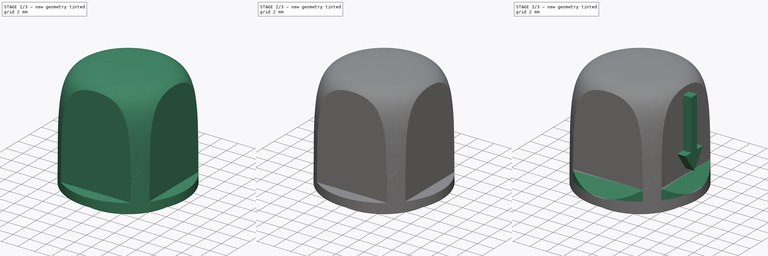
[diagram: build sequence overview — one tinted view per stage of 3, left to right]
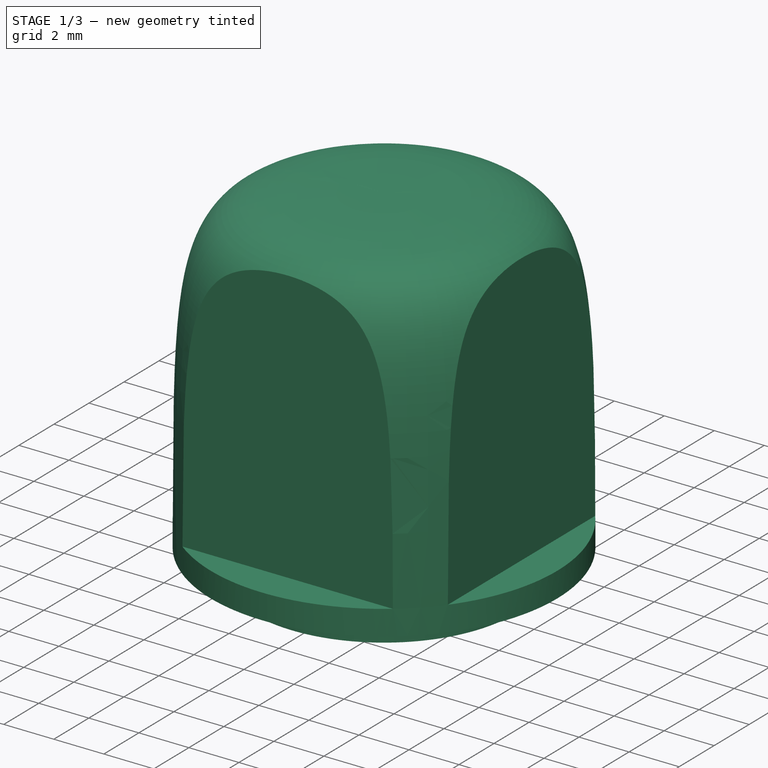
[diagram: stage 1 of 3 — iso view after this stage's code; geometry added in this stage tinted green]
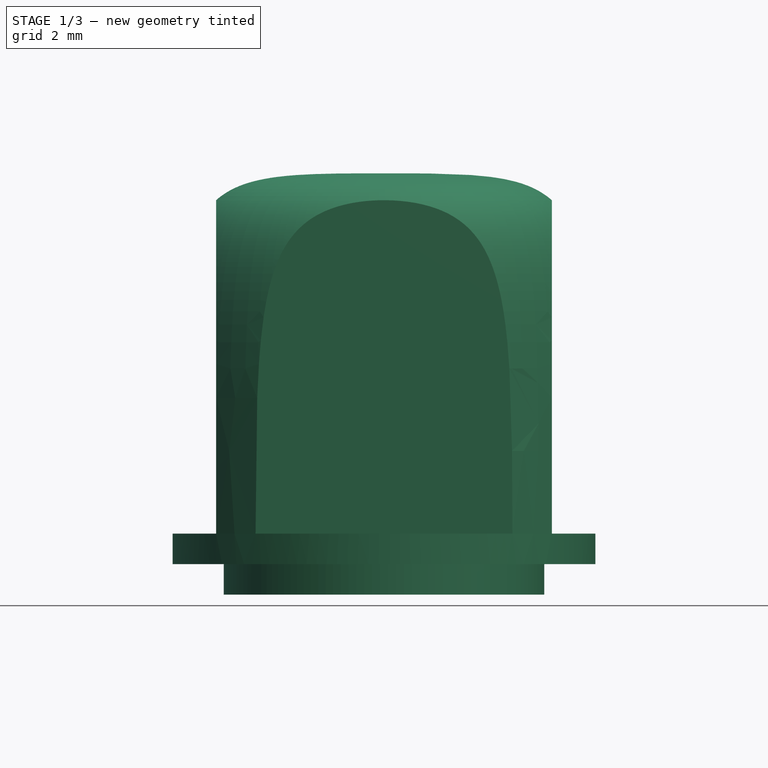
[diagram: stage 1 of 3 — front view after this stage's code; geometry added in this stage tinted green]
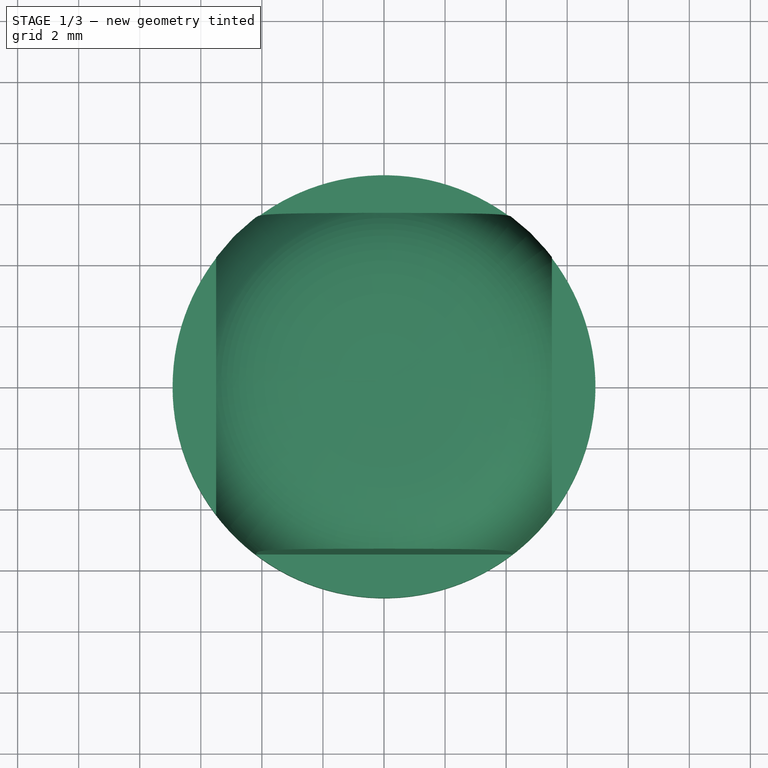
[diagram: stage 1 of 3 — top view after this stage's code; geometry added in this stage tinted green]
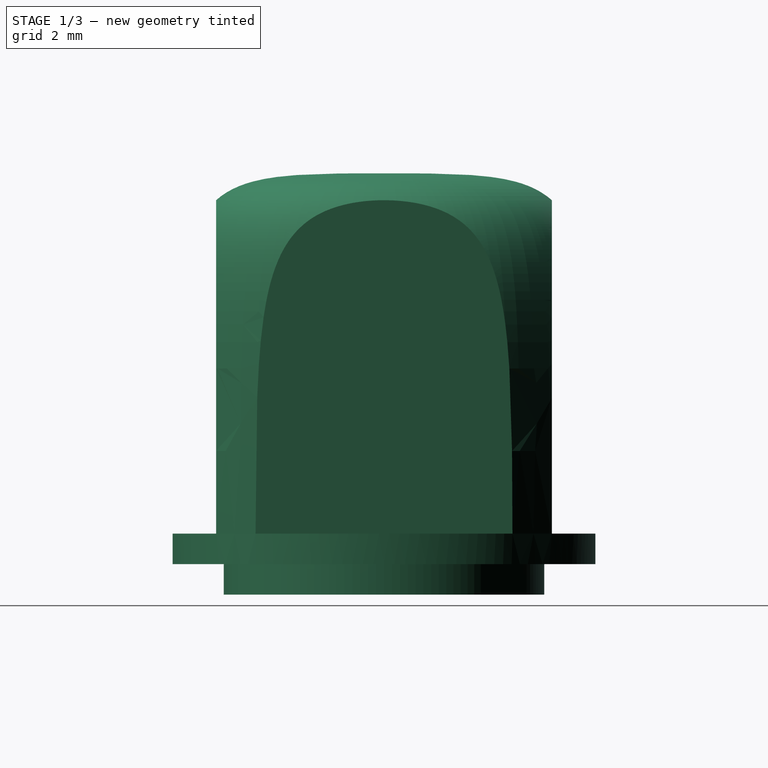
[diagram: stage 1 of 3 — right view after this stage's code; geometry added in this stage tinted green]
FCSTD DOCUMENT  (FreeCAD 0.21R33771 (Git))
Label: Крышка под рацию
License: All rights reserved
LicenseURL: https://en.wikipedia.org/wiki/All_rights_reserved
objects: Sketcher::SketchObject×6, PartDesign::Pocket×3, PartDesign::Pad×2, PartDesign::Chamfer×2, PartDesign::Revolution×1, PartDesign::Body×1
note: 23 computed .brp shape members not serialized (recipe doc carries the construction recipe); baked Part::Feature solids carry a one-line shape summary decoded from their .brp

FEATURE [Sketcher::SketchObject] Sketch
  FullyConstrained = true
  MapMode = 5
  Placement = pos=(0,0,0) rot=(1,0,0;1.5708rad)
  Support = -> [XZ_Plane]
  sketch-geometry (13):
    g0: LineSegment StartX=0 StartY=0 StartZ=0 EndX=-6.925 EndY=0 EndZ=0
    g1: LineSegment StartX=-6.925 StartY=0 StartZ=0 EndX=-6.925 EndY=6.4 EndZ=0
    g2: LineSegment StartX=-6.925 StartY=6.4 StartZ=0 EndX=-6.925 EndY=12.8 EndZ=0
    g3: LineSegment StartX=-6.925 StartY=12.8 StartZ=0 EndX=0 EndY=12.8 EndZ=0
    g4: Circle CenterX=-6.925 CenterY=0 CenterZ=0 NormalX=0 NormalY=0 NormalZ=1 AngleXU=0 Radius=1
    g5: Circle CenterX=-6.925 CenterY=12.8 CenterZ=0 NormalX=0 NormalY=0 NormalZ=1 AngleXU=0 Radius=1
    g6: Circle CenterX=-6.925 CenterY=12.8 CenterZ=0 NormalX=0 NormalY=0 NormalZ=1 AngleXU=0 Radius=1
    g7: BSplineCurve PolesCount=4 KnotsCount=2 Degree=3 IsPeriodic=0
    g8: GeomPoint X=-6.925 Y=0 Z=0
    g9: GeomPoint X=0 Y=12.8 Z=0
    g10: Circle CenterX=0 CenterY=12.8 CenterZ=0 NormalX=0 NormalY=0 NormalZ=1 AngleXU=0 Radius=1
    g11: LineSegment StartX=-6.925 StartY=0 StartZ=0 EndX=0 EndY=0 EndZ=0
    g12: LineSegment StartX=0 StartY=0 StartZ=0 EndX=0 EndY=12.8 EndZ=0
  constraints (30):
    c: Coincident(g-1,g0)
    c: PointOnObject(g0,g-1)
    c: Coincident(g0,g1)
    c: Vertical(g1)
    c: Vertical(g2)
    c: Coincident(g2,g3)
    c: Horizontal(g3)
    c: Equal(g2,g1)
    c: PointOnObject(g3,g-2)
    c: Weight(g4) = 1
    c: Coincident(g7,g0)
    c: Equal(g4,g5)
    c: Equal(g4,g6)
    c: Coincident(g7,g3)
    c: InternalAlignment(g4,g7)
    c: InternalAlignment(g5,g7)
    c: InternalAlignment(g6,g7)
    c: InternalAlignment(g8,g7)
    c: InternalAlignment(g9,g7)
    c: Coincident(g1,g2)
    c: Coincident(g5,g2)
    c: InternalAlignment(g10,g7)
    c: Equal(g10,g4)
    c: Coincident(g6,g2)
    c: Coincident(g11,g7)
    c: Coincident(g11,g0)
    c: Coincident(g11,g12)
    c: Coincident(g12,g7)
    c: DistanceY(g7,g2) = 12.8  'L1'
    c: DistanceX(g11,g11) = 6.925
FEATURE [PartDesign::Revolution] Revolution
  Angle = 360
  Axis = (0,2e-16,1)
  Base = (0,0,0)
  Placement = pos=(0,0,0) rot=(1,0,0;1.5708rad)
  Profile = -> Sketch
  ReferenceAxis = -> Sketch [V_Axis]
FEATURE [Sketcher::SketchObject] Sketch001
  AttachmentOffset = pos=(0,0,12.8) rot=(0,0,1;0rad)
  ExternalGeometry = -> [Revolution]
  FullyConstrained = true
  MapMode = 5
  Placement = pos=(0,0,12.8) rot=(0,0,1;0rad)
  Support = -> [XY_Plane]
  expr: .AttachmentOffset.Base.z = Sketch.Constraints.L1
  sketch-geometry (8):
    g0: ArcOfCircle CenterX=0 CenterY=0 CenterZ=0 NormalX=0 NormalY=0 NormalZ=1 AngleXU=0 Radius=6.925 StartAngle=5.63012 EndAngle=6.93625
    g1: ArcOfCircle CenterX=0 CenterY=0 CenterZ=0 NormalX=0 NormalY=0 NormalZ=1 AngleXU=0 Radius=6.925 StartAngle=0.917729 EndAngle=2.22386
    g2: ArcOfCircle CenterX=0 CenterY=0 CenterZ=0 NormalX=0 NormalY=0 NormalZ=1 AngleXU=0 Radius=6.925 StartAngle=2.48853 EndAngle=3.79466
    g3: ArcOfCircle CenterX=0 CenterY=0 CenterZ=0 NormalX=0 NormalY=0 NormalZ=1 AngleXU=0 Radius=6.925 StartAngle=4.05932 EndAngle=5.36546
    g4: LineSegment StartX=-4.20781 StartY=5.5 StartZ=0 EndX=4.20781 EndY=5.5 EndZ=0
    g5: LineSegment StartX=5.5 StartY=4.20781 StartZ=0 EndX=5.5 EndY=-4.20781 EndZ=0
    g6: LineSegment StartX=4.20781 StartY=-5.5 StartZ=0 EndX=-4.20781 EndY=-5.5 EndZ=0
    g7: LineSegment StartX=-5.5 StartY=-4.20781 StartZ=0 EndX=-5.5 EndY=4.20781 EndZ=0
  constraints (24):
    c: Coincident(g0,g-3)
    c: PointOnObject(g0,g-3)
    c: Coincident(g1,g0)
    c: PointOnObject(g1,g-3)
    c: Coincident(g2,g0)
    c: PointOnObject(g2,g-3)
    c: Coincident(g3,g0)
    c: PointOnObject(g3,g-3)
    c: Coincident(g4,g1)
    c: Coincident(g4,g1)
    c: Coincident(g5,g0)
    c: Coincident(g5,g0)
    c: Coincident(g6,g3)
    c: Coincident(g6,g3)
    c: Coincident(g7,g2)
    c: Coincident(g7,g2)
    c: Horizontal(g4)
    c: Horizontal(g6)
    c: Vertical(g7)
    c: Vertical(g5)
    c: Equal(g4,g7)
    c: Equal(g7,g6)
    c: Equal(g6,g5)
    c: DistanceX(g2,g0) = 11
FEATURE [PartDesign::Pocket] Pocket
  BaseFeature = -> Revolution
  Direction = (0,0,-1)
  Length = 11.8
  Length2 = 5
  Offset = 0.1
  Placement = pos=(0,0,0) rot=(1,0,0;1.5708rad)
  Profile = -> Sketch001
  ReferenceAxis = -> Sketch001 [N_Axis]
  Type = 0
FEATURE [Sketcher::SketchObject] Sketch002
  FullyConstrained = true
  MapMode = 5
  Support = -> [XY_Plane]
  sketch-geometry (4):
    g0: Circle CenterX=0 CenterY=0 CenterZ=0 NormalX=0 NormalY=0 NormalZ=1 AngleXU=0 Radius=5.25
    g1: Circle CenterX=0 CenterY=0 CenterZ=0 NormalX=0 NormalY=0 NormalZ=1 AngleXU=0 Radius=4.25
    g2: GeomPoint X=4.25 Y=0 Z=0
    g3: GeomPoint X=5.25 Y=0 Z=0
  constraints (8):
    c: Coincident(g0,g-1)
    c: Coincident(g1,g0)
    c: PointOnObject(g2,g1)
    c: PointOnObject(g3,g0)
    c: PointOnObject(g2,g-1)
    c: PointOnObject(g3,g-1)
    c: DistanceX(g0,g3) = 5.25
    c: DistanceX(g2,g3) = 1
FEATURE [PartDesign::Pad] Pad
  BaseFeature = -> Pocket
  Direction = (0,0,1)
  Length = 1
  Length2 = 10
  Placement = pos=(0,0,0) rot=(1,0,0;1.5708rad)
  Profile = -> Sketch002
  ReferenceAxis = -> Sketch002 [N_Axis]
  Reversed = true
  Type = 0
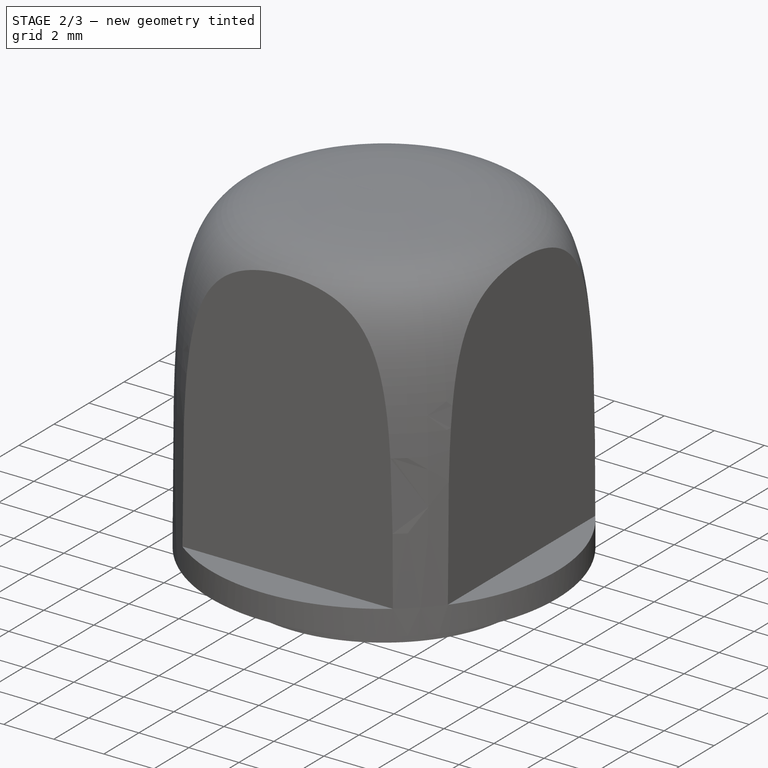
[diagram: stage 2 of 3 — iso view after this stage's code; geometry added in this stage tinted green]
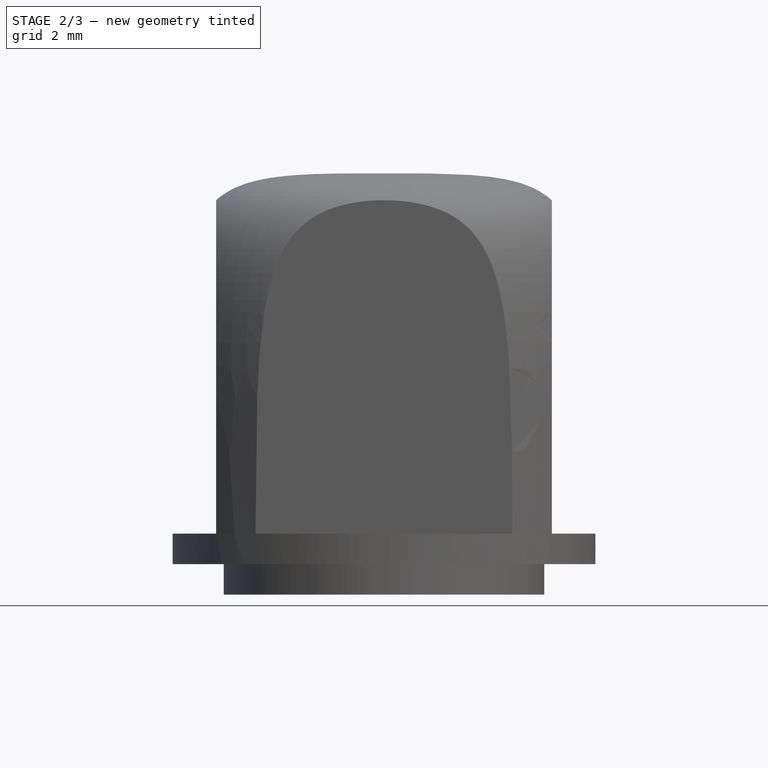
[diagram: stage 2 of 3 — front view after this stage's code; geometry added in this stage tinted green]
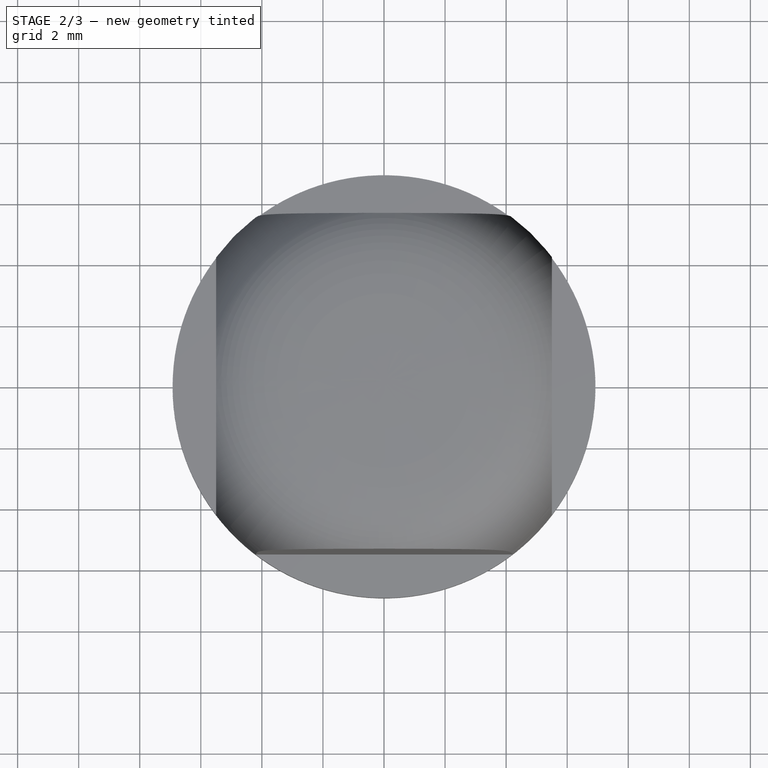
[diagram: stage 2 of 3 — top view after this stage's code; geometry added in this stage tinted green]
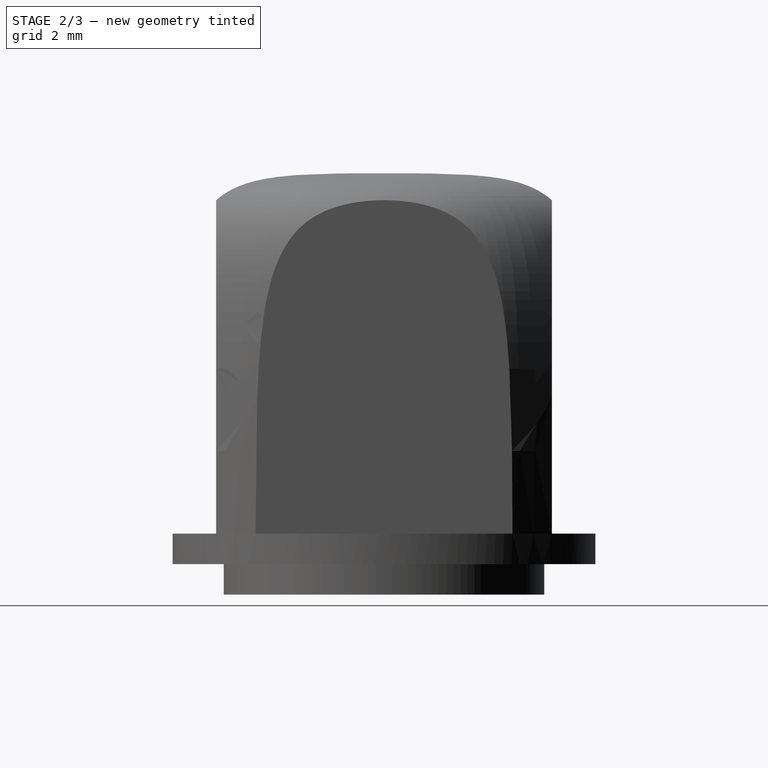
[diagram: stage 2 of 3 — right view after this stage's code; geometry added in this stage tinted green]
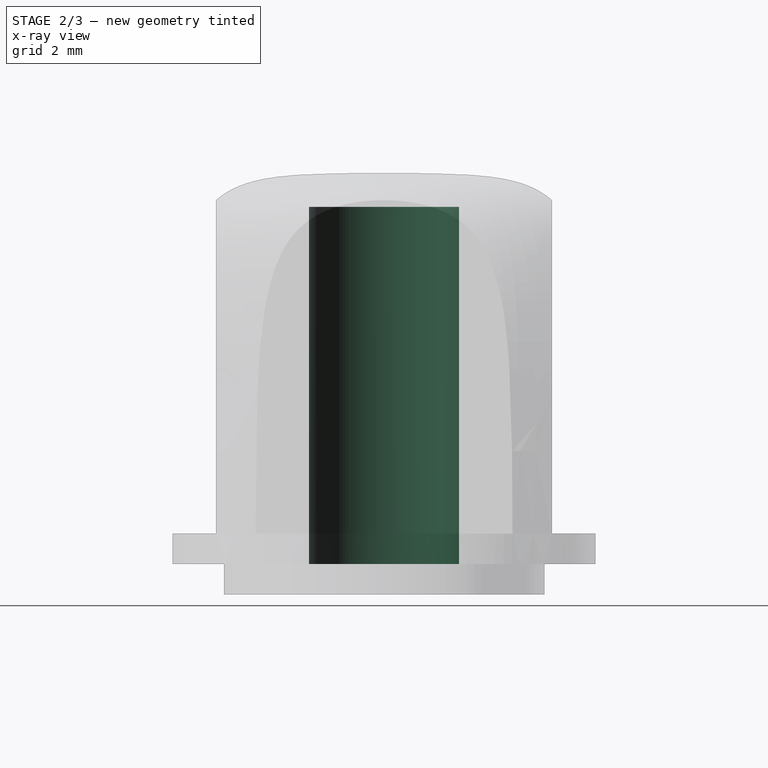
[diagram: stage 2 of 3 — x-ray composite at the right view; earlier geometry ghosted, this stage's added geometry solid]
FEATURE [Sketcher::SketchObject] Sketch003
  ExternalGeometry = -> [Pad]
  FullyConstrained = true
  MapMode = 5
  Placement = pos=(0,0,0) rot=(1,0,0;3.14159rad)
  Support = -> [Pad]
  sketch-geometry (2):
    g0: ArcOfCircle CenterX=0 CenterY=-2e-16 CenterZ=0 NormalX=0 NormalY=0 NormalZ=1 AngleXU=0 Radius=2.46 StartAngle=0.915197 EndAngle=5.36799
    g1: LineSegment StartX=1.4997 StartY=1.95 StartZ=0 EndX=1.4997 EndY=-1.95 EndZ=0
  constraints (6):
    c: Coincident(g0,g-3)
    c: Vertical(g1)
    c: Coincident(g0,g1)
    c: Coincident(g0,g1)
    c: Diameter(g0) = 4.92
    c: DistanceY(g1,g1) = 3.9
FEATURE [PartDesign::Pocket] Pocket001
  BaseFeature = -> Pad
  Direction = (0,2e-16,1)
  Length = 11.7
  Length2 = 5
  Placement = pos=(0,0,0) rot=(1,0,0;1.5708rad)
  Profile = -> Sketch003
  ReferenceAxis = -> Sketch003 [N_Axis]
  Type = 0
FEATURE [Sketcher::SketchObject] Sketch004
  ExternalGeometry = -> [Pocket001]
  FullyConstrained = true
  MapMode = 5
  Placement = pos=(0,0,0) rot=(1,0,0;3.14159rad)
  Support = -> [Pocket001]
  sketch-geometry (1):
    g0: Circle CenterX=0 CenterY=0 CenterZ=0 NormalX=0 NormalY=0 NormalZ=1 AngleXU=0 Radius=2.46
  constraints (2):
    c: Coincident(g0,g-3)
    c: Equal(g0,g-3)
FEATURE [PartDesign::Pocket] Pocket002
  BaseFeature = -> Pocket001
  Direction = (0,2e-16,1)
  Length = 4
  Length2 = 5
  Placement = pos=(0,0,0) rot=(1,0,0;1.5708rad)
  Profile = -> Sketch004
  ReferenceAxis = -> Sketch004 [N_Axis]
  Type = 0
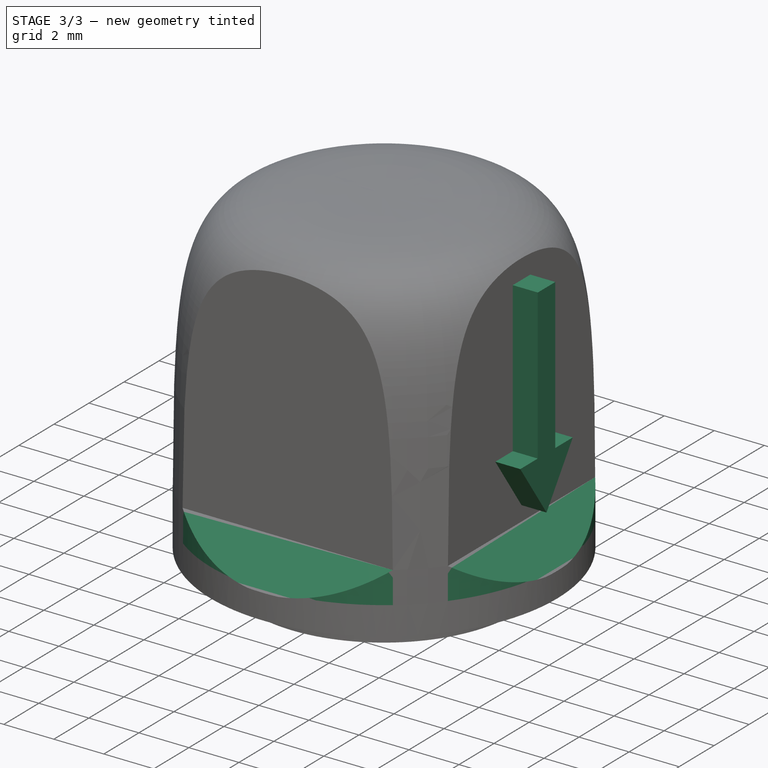
[diagram: stage 3 of 3 — iso view after this stage's code; geometry added in this stage tinted green]
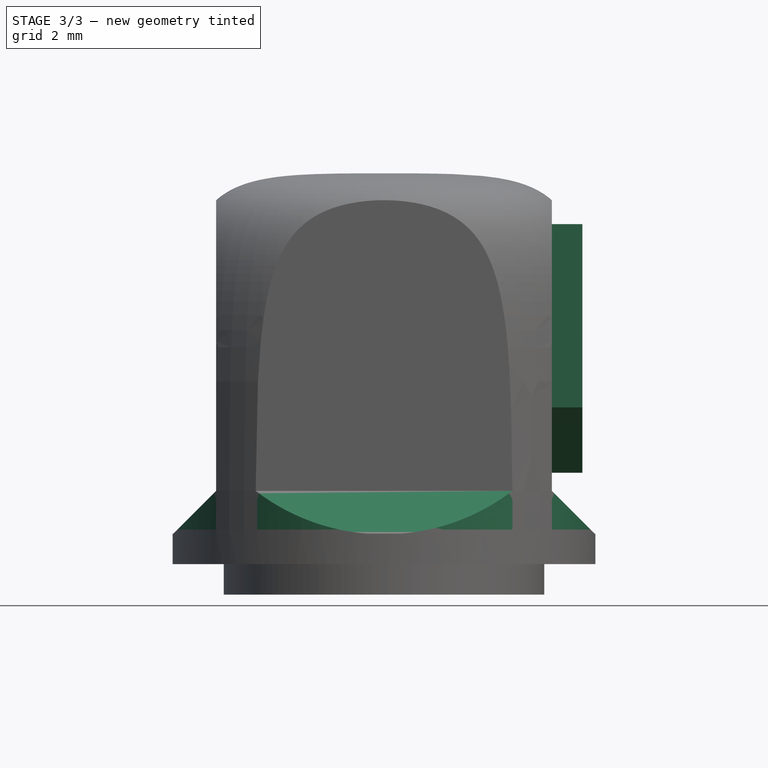
[diagram: stage 3 of 3 — front view after this stage's code; geometry added in this stage tinted green]
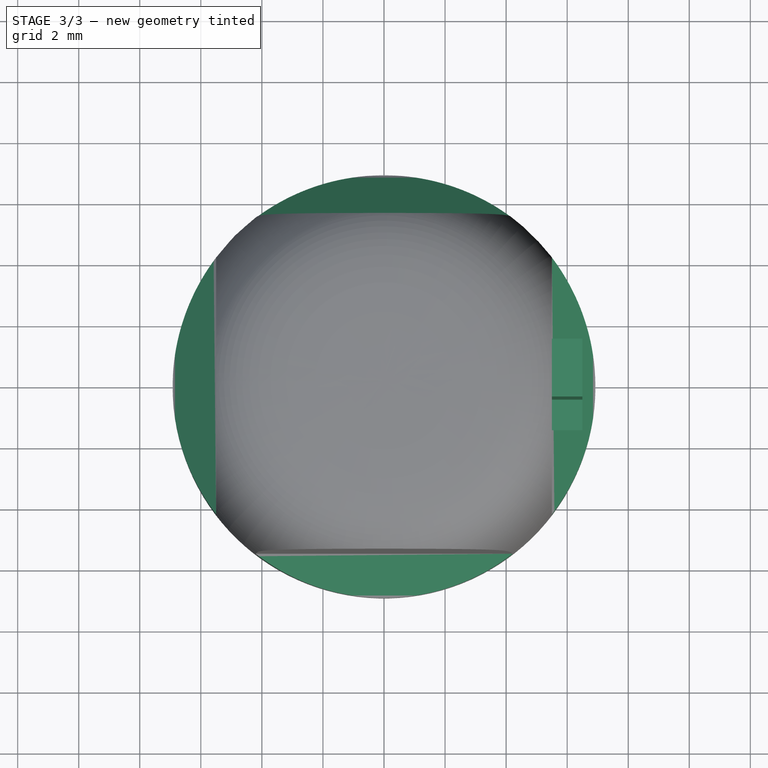
[diagram: stage 3 of 3 — top view after this stage's code; geometry added in this stage tinted green]
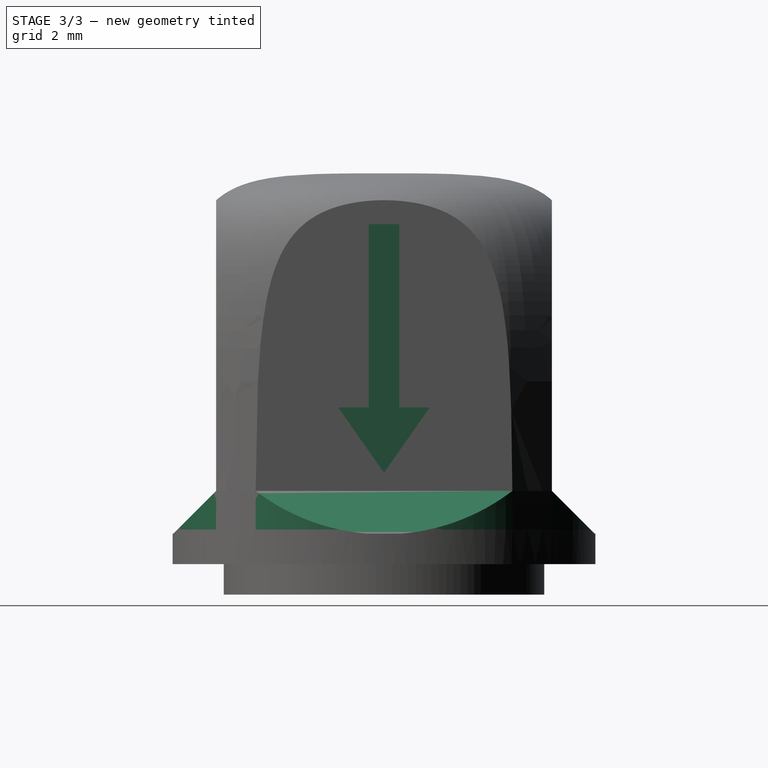
[diagram: stage 3 of 3 — right view after this stage's code; geometry added in this stage tinted green]
FEATURE [PartDesign::Chamfer] Chamfer
  Angle = 45
  Base = -> Pocket002 [Edge18,Edge17,Edge15,Edge19]
  BaseFeature = -> Pocket002
  ChamferType = 0
  FlipDirection = false
  Placement = pos=(0,0,0) rot=(1,0,0;1.5708rad)
  Size = 1.4
  Size2 = 1
  SupportTransform = false
  UseAllEdges = false
FEATURE [Sketcher::SketchObject] Sketch005
  FullyConstrained = false
  MapMode = 5
  Placement = pos=(5.5,0,0) rot=(0.707107,0,0.707107;3.14159rad)
  Support = -> [Chamfer]
  sketch-geometry (7):
    g0: LineSegment StartX=2.99282 StartY=0 StartZ=0 EndX=5.13504 EndY=-1.5 EndZ=0
    g1: LineSegment StartX=5.13504 StartY=-1.5 StartZ=0 EndX=5.13504 EndY=-0.5 EndZ=0
    g2: LineSegment StartX=5.13504 StartY=-0.5 StartZ=0 EndX=11.135 EndY=-0.5 EndZ=0
    g3: LineSegment StartX=11.135 StartY=-0.5 StartZ=0 EndX=11.135 EndY=0.5 EndZ=0
    g4: LineSegment StartX=11.135 StartY=0.5 StartZ=0 EndX=5.13504 EndY=0.5 EndZ=0
    g5: LineSegment StartX=5.13504 StartY=0.5 StartZ=0 EndX=5.13504 EndY=1.5 EndZ=0
    g6: LineSegment StartX=5.13504 StartY=1.5 StartZ=0 EndX=2.99282 EndY=0 EndZ=0
  constraints (20):
    c: PointOnObject(g0,g-1)
    c: Coincident(g0,g1)
    c: Vertical(g1)
    c: Coincident(g1,g2)
    c: Horizontal(g2)
    c: Coincident(g2,g3)
    c: Coincident(g3,g4)
    c: Horizontal(g4)
    c: Coincident(g4,g5)
    c: Coincident(g5,g6)
    c: Coincident(g6,g0)
    c: Equal(g0,g6)
    c: Equal(g5,g1)
    c: Vertical(g1,g4)
    c: Vertical(g3)
    c: Vertical(g5)
    c: Angle(g-1,g0) = 2.53073
    c: DistanceY(g5,g5) = 1
    c: DistanceY(g1,g4) = 1
    c: DistanceX(g4,g4) = 6
FEATURE [PartDesign::Pad] Pad001
  BaseFeature = -> Chamfer
  Direction = (1,0,-2e-16)
  Length = 1
  Length2 = 10
  Placement = pos=(0,0,0) rot=(1,0,0;1.5708rad)
  Profile = -> Sketch005
  ReferenceAxis = -> Sketch005 [N_Axis]
  Type = 0
FEATURE [PartDesign::Chamfer] Chamfer001
  Angle = 45
  Base = -> Pad001
  BaseFeature = -> Pad001
  ChamferType = 0
  FlipDirection = false
  Placement = pos=(0,0,0) rot=(1,0,0;1.5708rad)
  Size = 1
  Size2 = 1
  SupportTransform = false
  UseAllEdges = false
FEATURE [PartDesign::Body] Body  label="Тело"
  Group = -> [Sketch,Revolution,Sketch001,Pocket,Sketch002,Pad,Sketch003,Pocket001,Sketch004,Pocket002,Chamfer,Sketch005,Pad001,Chamfer001]
  Origin = -> Origin
  Tip = -> Chamfer001
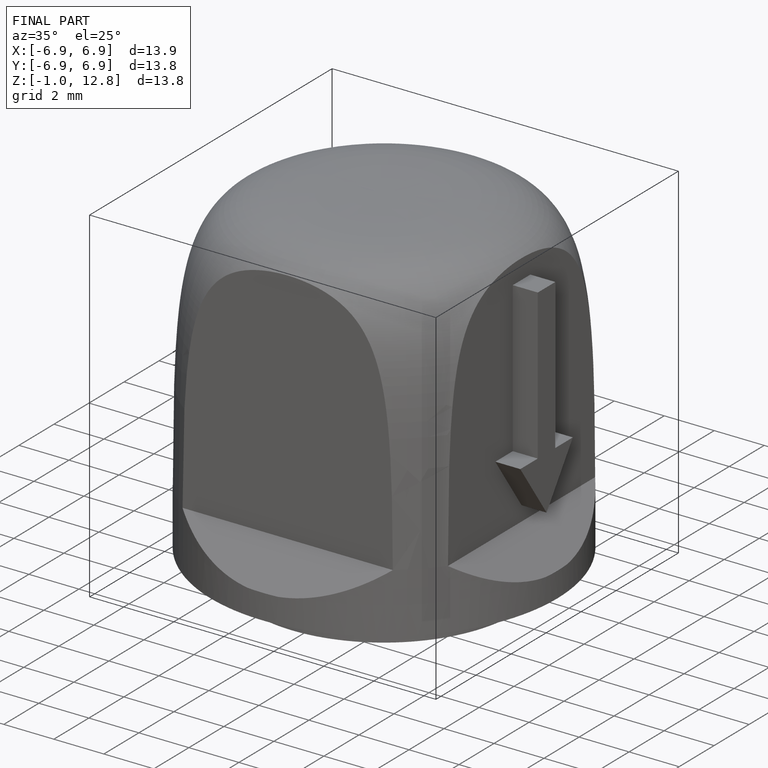
[diagram: finished part — iso view with bounding-box wireframe]
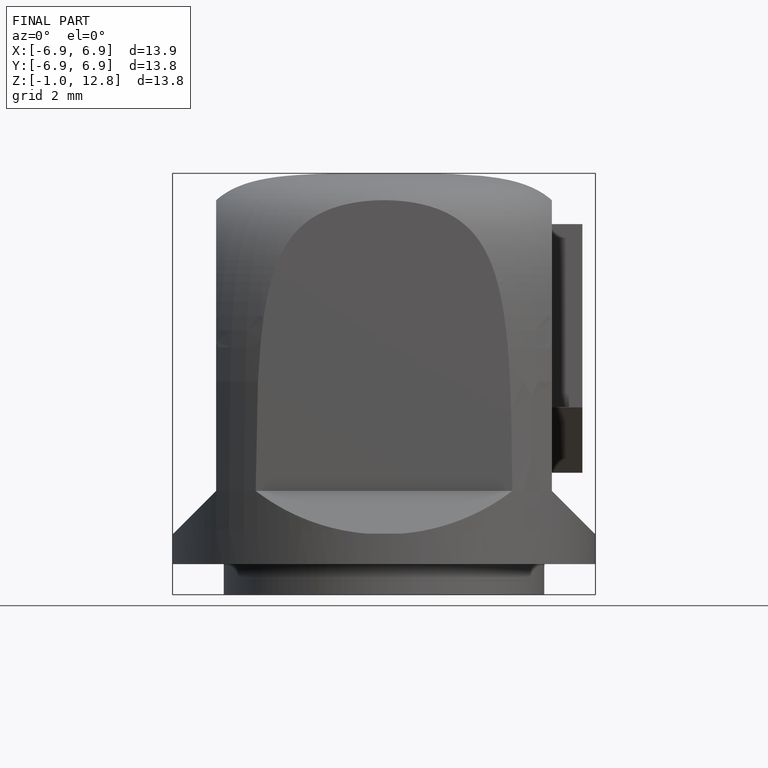
[diagram: finished part — front view with bounding-box wireframe]
